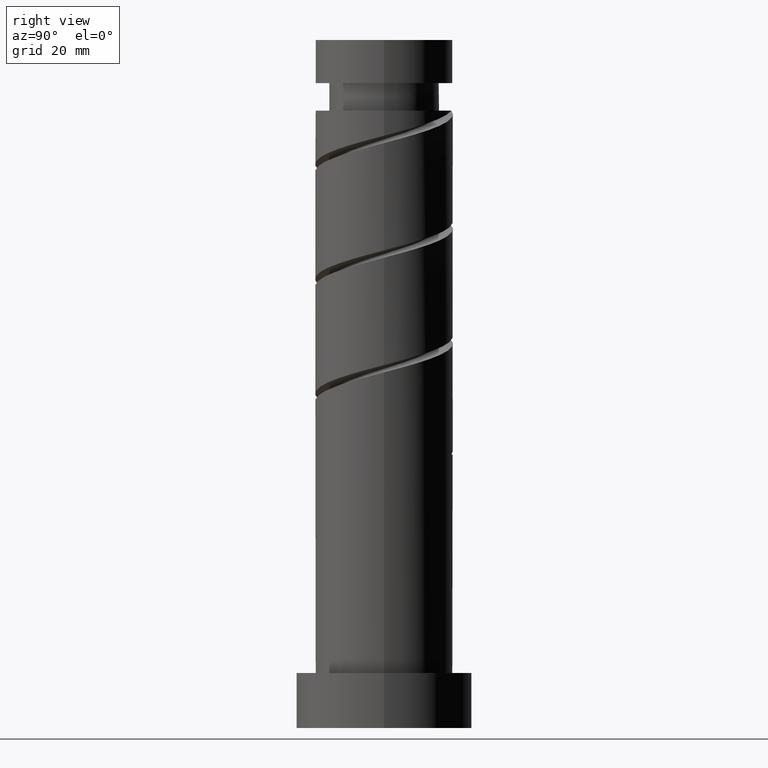
[diagram: clean part render]
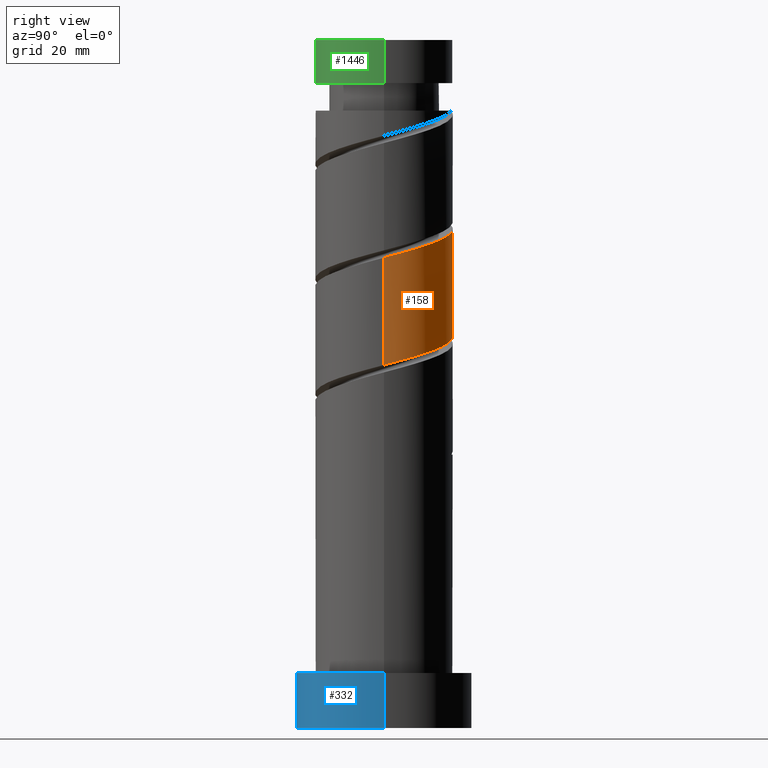
[diagram: same view with three faces highlighted in distinct colors, each labeled with its STEP entity id]
A machine part, right view with three faces highlighted in distinct colors.
Their STEP definitions:

[orange] entity #158 — the highlighted cylindrical surface (partial cylindrical patch) has radius 12.5 mm, axis along (-0, -0, -1).
#23 = CARTESIAN_POINT ( 'NONE',  ( -4.427677986742126315, 11.85602367910982480, 91.85252614094177659 ) ) ;
#75 = EDGE_CURVE ( 'NONE', #458, #400, #247, .T. ) ;
#106 = CARTESIAN_POINT ( 'NONE',  ( 2.487468592766555187, 12.25000000000000000, 70.49835947427511940 ) ) ;
#125 = CARTESIAN_POINT ( 'NONE',  ( -6.151181395323278345, 10.88177225647684843, 92.37335947427511940 ) ) ;
#140 = CARTESIAN_POINT ( 'NONE',  ( -7.874684803904425934, 9.907520833843868502, 92.89419280760841957 ) ) ;
#143 = CARTESIAN_POINT ( 'NONE',  ( 12.19424846461867062, 3.386729132516862251, 66.85252614094179080 ) ) ;
#158 = ADVANCED_FACE ( 'NONE', ( #607 ), #860, .T. ) ;
#182 = DIRECTION ( 'NONE',  ( -0.000000000000000000, -0.000000000000000000, -1.000000000000000000 ) ) ;
#193 = EDGE_LOOP ( 'NONE', ( #1162, #1552, #297, #1438 ) ) ;
#212 = CARTESIAN_POINT ( 'NONE',  ( -12.25000000000000000, 2.487468592766552078, 75.70669280760843378 ) ) ;
#225 = CARTESIAN_POINT ( 'NONE',  ( -6.989200819604575621, 10.55086260630532458, 73.10252614094179080 ) ) ;
#231 = CARTESIAN_POINT ( 'NONE',  ( 10.88177225647685198, 6.151181395323277457, 87.16502614094177659 ) ) ;
#237 = VECTOR ( 'NONE', #1516, 1000.000000000000000 ) ;
#240 = CARTESIAN_POINT ( 'NONE',  ( -10.55086260630533523, 6.989200819604586279, 93.93585947427511940 ) ) ;
#247 =( BOUNDED_CURVE ( )  B_SPLINE_CURVE ( 2, ( #691, #569, #212, #952, #1539, #938, #1417, #225, #818, #700, #715, #1197, #106, #593, #731, #1211, #1083, #277, #995, #143, #369, #392, #1104 ),
 .UNSPECIFIED., .F., .T. ) 
 B_SPLINE_CURVE_WITH_KNOTS ( ( 3, 2, 2, 2, 2, 2, 2, 2, 2, 2, 2, 3 ),
 ( 0.6795322023138552492, 0.6875000000000000000, 0.6999999999999999556, 0.7125000000000000222, 0.7249999999999999778, 0.7375000000000000444, 0.7500000000000000000, 0.7624999999999999556, 0.7750000000000000222, 0.7874999999999999778, 0.8000000000000000444, 0.8045322023138551382 ),
 .UNSPECIFIED. ) 
 CURVE ( )  GEOMETRIC_REPRESENTATION_ITEM ( )  RATIONAL_B_SPLINE_CURVE ( ( 0.9039174447099309617, 0.9019565955404604818, 0.9090909090909088386, 0.8978984914501249026, 0.9090909090909088386, 0.8978984914501249026, 0.9090909090909088386, 0.8978984914501249026, 0.9090909090909088386, 0.8978984914501249026, 0.9090909090909088386, 0.8978984914501249026, 0.9090909090909088386, 0.8978984914501249026, 0.9090909090909088386, 0.8978984914501249026, 0.9090909090909088386, 0.8978984914501249026, 0.9090909090909088386, 0.8978984914501249026, 0.9090909090909088386, 0.9050328050005733704, 0.9039174447099311838 ) ) 
 REPRESENTATION_ITEM ( '' )  );
#248 = CARTESIAN_POINT ( 'NONE',  ( 12.25000000000001776, 2.487468592766551190, 86.12335947427510519 ) ) ;
#267 = CARTESIAN_POINT ( 'NONE',  ( -12.41911239275444956, 1.419734966862945535, 95.49835947427511940 ) ) ;
#277 = CARTESIAN_POINT ( 'NONE',  ( 10.55086260630532458, 6.989200819604572068, 67.89419280760843378 ) ) ;
#297 = ORIENTED_EDGE ( 'NONE', *, *, #75, .F. ) ;
#369 = CARTESIAN_POINT ( 'NONE',  ( 12.41911239275443180, 1.419734966862938208, 66.33169280760844799 ) ) ;
#392 = CARTESIAN_POINT ( 'NONE',  ( 12.49999999999999645, 0.7121717180804170155, 66.14433967161930639 ) ) ;
#400 = VERTEX_POINT ( 'NONE', #471 ) ;
#417 = LINE ( 'NONE', #548, #237 ) ;
#458 = VERTEX_POINT ( 'NONE', #1057 ) ;
#471 = CARTESIAN_POINT ( 'NONE',  ( 12.49999999999999822, 1.691221993945621780E-14, 65.95482858241206259 ) ) ;
#500 = CARTESIAN_POINT ( 'NONE',  ( -2.487468592766550302, 12.25000000000001776, 91.33169280760846220 ) ) ;
#507 = CARTESIAN_POINT ( 'NONE',  ( -12.50000000000001954, 0.7121717180803880387, 95.68571261026423258 ) ) ;
#548 = CARTESIAN_POINT ( 'NONE',  ( -12.50000000000000000, 0.000000000000000000, 125.0000000000000000 ) ) ;
#554 = CARTESIAN_POINT ( 'NONE',  ( 12.50000000000001954, 1.169462017090050826E-14, 85.45855703280483340 ) ) ;
#564 = AXIS2_PLACEMENT_3D ( 'NONE', #1453, #1232, #601 ) ;
#569 = CARTESIAN_POINT ( 'NONE',  ( -12.49999999999999645, 1.256297269074024614, 76.03719067367083539 ) ) ;
#593 = CARTESIAN_POINT ( 'NONE',  ( 4.427677986742124538, 11.85602367910980348, 69.97752614094177659 ) ) ;
#601 = DIRECTION ( 'NONE',  ( -1.000000000000000000, 0.000000000000000000, 0.000000000000000000 ) ) ;
#607 = FACE_OUTER_BOUND ( 'NONE', #193, .T. ) ;
#609 = EDGE_CURVE ( 'NONE', #1087, #895, #1108, .T. ) ;
#612 = CARTESIAN_POINT ( 'NONE',  ( -9.212773705104885025, 8.448360826724233164, 93.41502614094180501 ) ) ;
#621 = CARTESIAN_POINT ( 'NONE',  ( -12.50000000000001599, -6.776882458009010663E-15, 95.87522369947151901 ) ) ;
#691 = CARTESIAN_POINT ( 'NONE',  ( -12.50000000000000178, 1.643244065039363521E-14, 76.37149524907871978 ) ) ;
#700 = CARTESIAN_POINT ( 'NONE',  ( -3.386729132516863583, 12.19424846461866707, 72.06085947427511940 ) ) ;
#715 = CARTESIAN_POINT ( 'NONE',  ( -1.419734966862940428, 12.41911239275443002, 71.54002614094177659 ) ) ;
#728 = CARTESIAN_POINT ( 'NONE',  ( -11.37255553546201270, 5.187964976060727373, 94.45669280760844799 ) ) ;
#731 = CARTESIAN_POINT ( 'NONE',  ( 6.151181395323274792, 10.88177225647682889, 69.45669280760843378 ) ) ;
#736 = CARTESIAN_POINT ( 'NONE',  ( 1.419734966862947978, 12.41911239275444956, 90.29002614094180501 ) ) ;
#753 = CARTESIAN_POINT ( 'NONE',  ( 12.50000000000002132, 1.169462017090050826E-14, 85.45855703280483340 ) ) ;
#785 = CARTESIAN_POINT ( 'NONE',  ( 12.50000000000000000, 1.530808498934191521E-15, 125.0000000000000000 ) ) ;
#818 = CARTESIAN_POINT ( 'NONE',  ( -5.187964976060718492, 11.37255553546199671, 72.58169280760846220 ) ) ;
#844 = CARTESIAN_POINT ( 'NONE',  ( 12.50000000000001243, 1.256297269074021505, 85.79286160821268936 ) ) ;
#860 = CYLINDRICAL_SURFACE ( 'NONE', #564, 12.50000000000000000 ) ;
#865 = CARTESIAN_POINT ( 'NONE',  ( 8.448360826724233164, 9.212773705104883248, 88.20669280760843378 ) ) ;
#895 = VERTEX_POINT ( 'NONE', #1490 ) ;
#938 = CARTESIAN_POINT ( 'NONE',  ( -9.907520833843854291, 7.874684803904420605, 74.14419280760844799 ) ) ;
#952 = CARTESIAN_POINT ( 'NONE',  ( -11.85602367910980703, 4.427677986742121874, 75.18585947427513361 ) ) ;
#968 = CARTESIAN_POINT ( 'NONE',  ( 3.386729132516872465, 12.19424846461868484, 89.76919280760843378 ) ) ;
#995 = CARTESIAN_POINT ( 'NONE',  ( 11.37255553546199671, 5.187964976060715827, 67.37335947427511940 ) ) ;
#1057 = CARTESIAN_POINT ( 'NONE',  ( -12.50000000000000000, 1.643244065039363521E-14, 76.37149524907871978 ) ) ;
#1083 = CARTESIAN_POINT ( 'NONE',  ( 9.212773705104874367, 8.448360826724210071, 68.41502614094174817 ) ) ;
#1087 = VERTEX_POINT ( 'NONE', #554 ) ;
#1104 = CARTESIAN_POINT ( 'NONE',  ( 12.49999999999999822, 1.691221993945621780E-14, 65.95482858241206259 ) ) ;
#1108 =( BOUNDED_CURVE ( )  B_SPLINE_CURVE ( 2, ( #753, #844, #248, #1457, #231, #1329, #865, #1322, #1337, #968, #736, #1229, #500, #23, #125, #140, #612, #240, #728, #1353, #267, #507, #621 ),
 .UNSPECIFIED., .F., .T. ) 
 B_SPLINE_CURVE_WITH_KNOTS ( ( 3, 2, 2, 2, 2, 2, 2, 2, 2, 2, 2, 3 ),
 ( 0.4295322023138552492, 0.4375000000000000000, 0.4499999999999999556, 0.4625000000000000222, 0.4749999999999999778, 0.4875000000000000444, 0.5000000000000000000, 0.5124999999999999556, 0.5250000000000000222, 0.5374999999999999778, 0.5500000000000000444, 0.5545322023138553602 ),
 .UNSPECIFIED. ) 
 CURVE ( )  GEOMETRIC_REPRESENTATION_ITEM ( )  RATIONAL_B_SPLINE_CURVE ( ( 0.9039174447099365128, 0.9019565955404660329, 0.9090909090909143897, 0.8978984914501305648, 0.9090909090909143897, 0.8978984914501305648, 0.9090909090909143897, 0.8978984914501305648, 0.9090909090909143897, 0.8978984914501305648, 0.9090909090909143897, 0.8978984914501305648, 0.9090909090909143897, 0.8978984914501305648, 0.9090909090909143897, 0.8978984914501305648, 0.9090909090909143897, 0.8978984914501305648, 0.9090909090909143897, 0.8978984914501305648, 0.9090909090909143897, 0.9050328050005786995, 0.9039174447099365128 ) ) 
 REPRESENTATION_ITEM ( '' )  );
#1162 = ORIENTED_EDGE ( 'NONE', *, *, #609, .F. ) ;
#1197 = CARTESIAN_POINT ( 'NONE',  ( 0.5472591987909828370, 12.64397632089019297, 71.01919280760844799 ) ) ;
#1211 = CARTESIAN_POINT ( 'NONE',  ( 7.874684803904422381, 9.907520833843854291, 68.93585947427511940 ) ) ;
#1229 = CARTESIAN_POINT ( 'NONE',  ( -0.5472591987909779521, 12.64397632089020895, 90.81085947427511940 ) ) ;
#1232 = DIRECTION ( 'NONE',  ( -0.000000000000000000, -0.000000000000000000, -1.000000000000000000 ) ) ;
#1265 = LINE ( 'NONE', #785, #1402 ) ;
#1322 = CARTESIAN_POINT ( 'NONE',  ( 6.989200819604588055, 10.55086260630533346, 88.72752614094177659 ) ) ;
#1329 = CARTESIAN_POINT ( 'NONE',  ( 9.907520833843870278, 7.874684803904425934, 87.68585947427510519 ) ) ;
#1337 = CARTESIAN_POINT ( 'NONE',  ( 5.187964976060731814, 11.37255553546201270, 89.24835947427510519 ) ) ;
#1353 = CARTESIAN_POINT ( 'NONE',  ( -12.19424846461868484, 3.386729132516870688, 94.97752614094174817 ) ) ;
#1402 = VECTOR ( 'NONE', #182, 1000.000000000000000 ) ;
#1417 = CARTESIAN_POINT ( 'NONE',  ( -8.448360826724213624, 9.212773705104870814, 73.62335947427509097 ) ) ;
#1421 = EDGE_CURVE ( 'NONE', #895, #458, #417, .T. ) ;
#1438 = ORIENTED_EDGE ( 'NONE', *, *, #1421, .F. ) ;
#1453 = CARTESIAN_POINT ( 'NONE',  ( 0.000000000000000000, 0.000000000000000000, 125.0000000000000000 ) ) ;
#1457 = CARTESIAN_POINT ( 'NONE',  ( 11.85602367910982480, 4.427677986742121874, 86.64419280760844799 ) ) ;
#1490 = CARTESIAN_POINT ( 'NONE',  ( -12.50000000000001599, -6.776882458009010663E-15, 95.87522369947150480 ) ) ;
#1516 = DIRECTION ( 'NONE',  ( -0.000000000000000000, -0.000000000000000000, -1.000000000000000000 ) ) ;
#1520 = EDGE_CURVE ( 'NONE', #1087, #400, #1265, .T. ) ;
#1539 = CARTESIAN_POINT ( 'NONE',  ( -10.88177225647682889, 6.151181395323272127, 74.66502614094176238 ) ) ;
#1552 = ORIENTED_EDGE ( 'NONE', *, *, #1520, .T. ) ;

[blue] entity #332 — the highlighted cylindrical surface (partial cylindrical patch) has radius 16 mm, axis along (-0, -0, -1).
#33 = DIRECTION ( 'NONE',  ( 1.000000000000000000, 0.000000000000000000, 0.000000000000000000 ) ) ;
#113 = DIRECTION ( 'NONE',  ( 1.000000000000000000, 0.000000000000000000, 0.000000000000000000 ) ) ;
#157 = DIRECTION ( 'NONE',  ( 0.000000000000000000, 0.000000000000000000, 1.000000000000000000 ) ) ;
#169 = EDGE_CURVE ( 'NONE', #1407, #375, #495, .T. ) ;
#171 = ORIENTED_EDGE ( 'NONE', *, *, #169, .F. ) ;
#258 = CARTESIAN_POINT ( 'NONE',  ( -16.00000000000000000, 0.000000000000000000, 10.00000000000000000 ) ) ;
#265 = VECTOR ( 'NONE', #1010, 1000.000000000000000 ) ;
#305 = EDGE_LOOP ( 'NONE', ( #171, #803, #983, #413 ) ) ;
#332 = ADVANCED_FACE ( 'NONE', ( #1073 ), #1559, .T. ) ;
#375 = VERTEX_POINT ( 'NONE', #956 ) ;
#413 = ORIENTED_EDGE ( 'NONE', *, *, #659, .T. ) ;
#439 = CIRCLE ( 'NONE', #643, 16.00000000000000000 ) ;
#494 = CARTESIAN_POINT ( 'NONE',  ( 16.00000000000000000, 1.959434878635765131E-15, 10.00000000000000000 ) ) ;
#495 = LINE ( 'NONE', #877, #1249 ) ;
#514 = CIRCLE ( 'NONE', #870, 16.00000000000000000 ) ;
#525 = CARTESIAN_POINT ( 'NONE',  ( -16.00000000000000000, 0.000000000000000000, 10.00000000000000000 ) ) ;
#599 = DIRECTION ( 'NONE',  ( 0.000000000000000000, 0.000000000000000000, 1.000000000000000000 ) ) ;
#643 = AXIS2_PLACEMENT_3D ( 'NONE', #1119, #157, #33 ) ;
#659 = EDGE_CURVE ( 'NONE', #832, #375, #514, .T. ) ;
#803 = ORIENTED_EDGE ( 'NONE', *, *, #1311, .F. ) ;
#830 = CARTESIAN_POINT ( 'NONE',  ( 0.000000000000000000, 0.000000000000000000, 10.00000000000000000 ) ) ;
#832 = VERTEX_POINT ( 'NONE', #1451 ) ;
#847 = DIRECTION ( 'NONE',  ( -0.000000000000000000, -0.000000000000000000, -1.000000000000000000 ) ) ;
#870 = AXIS2_PLACEMENT_3D ( 'NONE', #1441, #599, #113 ) ;
#877 = CARTESIAN_POINT ( 'NONE',  ( 16.00000000000000000, 1.959434878635765131E-15, 10.00000000000000000 ) ) ;
#956 = CARTESIAN_POINT ( 'NONE',  ( 16.00000000000000000, 1.959434878635765131E-15, 0.000000000000000000 ) ) ;
#983 = ORIENTED_EDGE ( 'NONE', *, *, #1359, .T. ) ;
#1002 = LINE ( 'NONE', #525, #265 ) ;
#1010 = DIRECTION ( 'NONE',  ( -0.000000000000000000, -0.000000000000000000, -1.000000000000000000 ) ) ;
#1073 = FACE_OUTER_BOUND ( 'NONE', #305, .T. ) ;
#1119 = CARTESIAN_POINT ( 'NONE',  ( 0.000000000000000000, 0.000000000000000000, 10.00000000000000000 ) ) ;
#1149 = AXIS2_PLACEMENT_3D ( 'NONE', #830, #1415, #1188 ) ;
#1188 = DIRECTION ( 'NONE',  ( -1.000000000000000000, 0.000000000000000000, 0.000000000000000000 ) ) ;
#1249 = VECTOR ( 'NONE', #847, 1000.000000000000000 ) ;
#1311 = EDGE_CURVE ( 'NONE', #1344, #1407, #439, .T. ) ;
#1344 = VERTEX_POINT ( 'NONE', #258 ) ;
#1359 = EDGE_CURVE ( 'NONE', #1344, #832, #1002, .T. ) ;
#1407 = VERTEX_POINT ( 'NONE', #494 ) ;
#1415 = DIRECTION ( 'NONE',  ( -0.000000000000000000, -0.000000000000000000, -1.000000000000000000 ) ) ;
#1441 = CARTESIAN_POINT ( 'NONE',  ( 0.000000000000000000, 0.000000000000000000, 0.000000000000000000 ) ) ;
#1451 = CARTESIAN_POINT ( 'NONE',  ( -16.00000000000000000, 0.000000000000000000, 0.000000000000000000 ) ) ;
#1559 = CYLINDRICAL_SURFACE ( 'NONE', #1149, 16.00000000000000000 ) ;

[green] entity #1446 — the highlighted cylindrical surface (partial cylindrical patch) has radius 12.5 mm, axis along (-0, -0, -1).
#35 = AXIS2_PLACEMENT_3D ( 'NONE', #1534, #1406, #670 ) ;
#86 = VECTOR ( 'NONE', #1392, 1000.000000000000000 ) ;
#208 = CARTESIAN_POINT ( 'NONE',  ( 12.50000000000000000, 1.530808498934191521E-15, 125.0000000000000000 ) ) ;
#282 = EDGE_CURVE ( 'NONE', #1431, #537, #778, .T. ) ;
#312 = ORIENTED_EDGE ( 'NONE', *, *, #1466, .F. ) ;
#316 = CARTESIAN_POINT ( 'NONE',  ( 0.000000000000000000, 0.000000000000000000, 125.0000000000000000 ) ) ;
#331 = CYLINDRICAL_SURFACE ( 'NONE', #1280, 12.50000000000000000 ) ;
#390 = CARTESIAN_POINT ( 'NONE',  ( -12.49999999999999822, 0.000000000000000000, 117.1650261409417766 ) ) ;
#418 = EDGE_CURVE ( 'NONE', #1029, #913, #801, .T. ) ;
#431 = CARTESIAN_POINT ( 'NONE',  ( 0.000000000000000000, 0.000000000000000000, 117.1650261409417766 ) ) ;
#537 = VERTEX_POINT ( 'NONE', #1293 ) ;
#540 = CARTESIAN_POINT ( 'NONE',  ( -12.50000000000000000, 0.000000000000000000, 125.0000000000000000 ) ) ;
#542 = CARTESIAN_POINT ( 'NONE',  ( 12.50000000000000000, 1.530808498934191521E-15, 125.0000000000000000 ) ) ;
#563 = DIRECTION ( 'NONE',  ( -1.000000000000000000, 0.000000000000000000, 0.000000000000000000 ) ) ;
#662 = DIRECTION ( 'NONE',  ( -0.000000000000000000, -0.000000000000000000, -1.000000000000000000 ) ) ;
#670 = DIRECTION ( 'NONE',  ( 1.000000000000000000, 0.000000000000000000, 0.000000000000000000 ) ) ;
#679 = ORIENTED_EDGE ( 'NONE', *, *, #418, .T. ) ;
#694 = DIRECTION ( 'NONE',  ( -0.000000000000000000, -0.000000000000000000, -1.000000000000000000 ) ) ;
#778 = LINE ( 'NONE', #542, #86 ) ;
#801 = LINE ( 'NONE', #1195, #1279 ) ;
#872 = CIRCLE ( 'NONE', #35, 12.50000000000000000 ) ;
#904 = ORIENTED_EDGE ( 'NONE', *, *, #1541, .F. ) ;
#908 = DIRECTION ( 'NONE',  ( -1.000000000000000000, 0.000000000000000000, 0.000000000000000000 ) ) ;
#913 = VERTEX_POINT ( 'NONE', #390 ) ;
#925 = CIRCLE ( 'NONE', #1531, 12.49999999999999822 ) ;
#935 = FACE_OUTER_BOUND ( 'NONE', #1521, .T. ) ;
#1029 = VERTEX_POINT ( 'NONE', #540 ) ;
#1140 = ORIENTED_EDGE ( 'NONE', *, *, #282, .F. ) ;
#1195 = CARTESIAN_POINT ( 'NONE',  ( -12.50000000000000000, 0.000000000000000000, 125.0000000000000000 ) ) ;
#1279 = VECTOR ( 'NONE', #1284, 1000.000000000000000 ) ;
#1280 = AXIS2_PLACEMENT_3D ( 'NONE', #316, #694, #563 ) ;
#1284 = DIRECTION ( 'NONE',  ( -0.000000000000000000, -0.000000000000000000, -1.000000000000000000 ) ) ;
#1293 = CARTESIAN_POINT ( 'NONE',  ( 12.49999999999999822, 1.530808498934191324E-15, 117.1650261409417766 ) ) ;
#1392 = DIRECTION ( 'NONE',  ( -0.000000000000000000, -0.000000000000000000, -1.000000000000000000 ) ) ;
#1406 = DIRECTION ( 'NONE',  ( 0.000000000000000000, 0.000000000000000000, 1.000000000000000000 ) ) ;
#1431 = VERTEX_POINT ( 'NONE', #208 ) ;
#1446 = ADVANCED_FACE ( 'NONE', ( #935 ), #331, .T. ) ;
#1466 = EDGE_CURVE ( 'NONE', #1029, #1431, #872, .T. ) ;
#1521 = EDGE_LOOP ( 'NONE', ( #1140, #312, #679, #904 ) ) ;
#1531 = AXIS2_PLACEMENT_3D ( 'NONE', #431, #662, #908 ) ;
#1534 = CARTESIAN_POINT ( 'NONE',  ( 0.000000000000000000, 0.000000000000000000, 125.0000000000000000 ) ) ;
#1541 = EDGE_CURVE ( 'NONE', #537, #913, #925, .T. ) ;